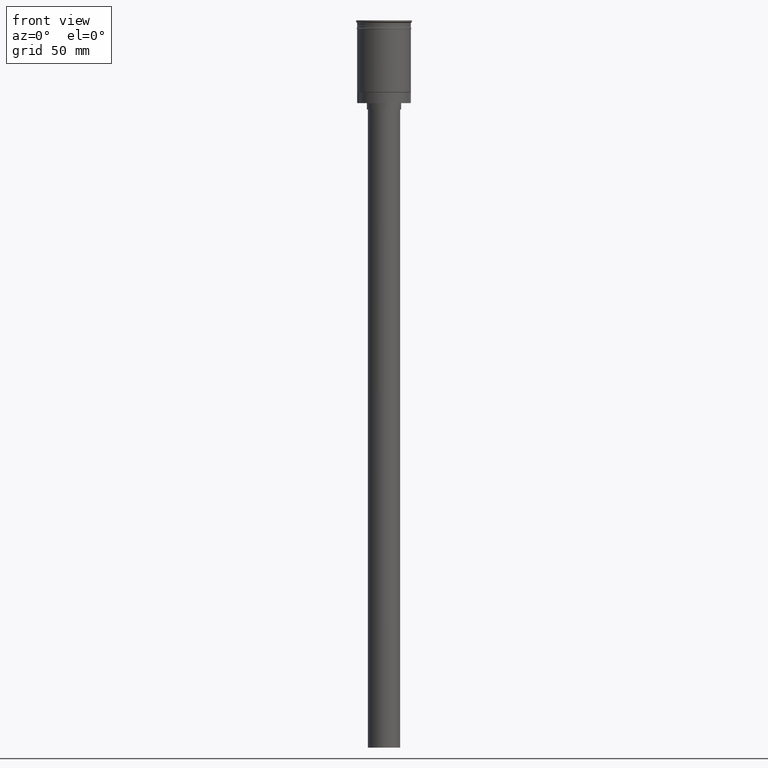
[diagram: clean part render]
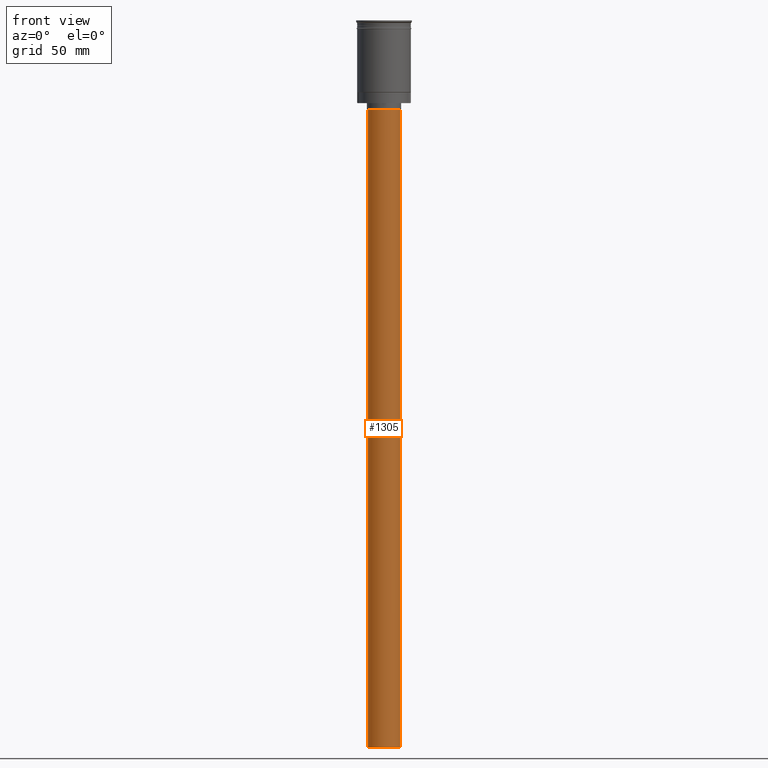
[diagram: same view with one face highlighted and labeled with its STEP entity id]
A machine part, front view. The second image highlights one B-rep face of the part: STEP entity #1305.
In plain terms, the highlighted cylindrical surface (edge-blend (fillet) strip) has radius 7.5 mm, axis along (-0, -0, 1).
Its self-contained STEP definition (entity closure, byte-faithful):
#31 = DIRECTION ( 'NONE',  ( 1.000000000000000000, 0.000000000000000000, 0.000000000000000000 ) ) ;
#34 = CIRCLE ( 'NONE', #1242, 7.500000000000000000 ) ;
#96 = DIRECTION ( 'NONE',  ( -0.000000000000000000, -0.000000000000000000, 1.000000000000000000 ) ) ;
#161 = CARTESIAN_POINT ( 'NONE',  ( -7.500000000000000000, 9.184850993605147944E-16, -41.50000000000000000 ) ) ;
#168 = VECTOR ( 'NONE', #582, 1000.000000000000000 ) ;
#171 = EDGE_CURVE ( 'NONE', #338, #834, #1398, .T. ) ;
#225 = DIRECTION ( 'NONE',  ( -1.000000000000000000, 0.000000000000000000, 0.000000000000000000 ) ) ;
#232 = CARTESIAN_POINT ( 'NONE',  ( 7.500000000000000000, 0.000000000000000000, -41.50000000000000000 ) ) ;
#246 = AXIS2_PLACEMENT_3D ( 'NONE', #327, #823, #225 ) ;
#315 = CARTESIAN_POINT ( 'NONE',  ( -7.500000000000000000, 9.184850993605147944E-16, -338.4999999999999432 ) ) ;
#327 = CARTESIAN_POINT ( 'NONE',  ( 0.000000000000000000, 0.000000000000000000, -41.50000000000000000 ) ) ;
#338 = VERTEX_POINT ( 'NONE', #232 ) ;
#408 = VERTEX_POINT ( 'NONE', #889 ) ;
#413 = FACE_OUTER_BOUND ( 'NONE', #441, .T. ) ;
#441 = EDGE_LOOP ( 'NONE', ( #1202, #887, #1454, #1021 ) ) ;
#462 = DIRECTION ( 'NONE',  ( -1.000000000000000000, 0.000000000000000000, 0.000000000000000000 ) ) ;
#520 = CARTESIAN_POINT ( 'NONE',  ( 0.000000000000000000, 0.000000000000000000, -338.4999999999999432 ) ) ;
#549 = CARTESIAN_POINT ( 'NONE',  ( 7.500000000000000000, 0.000000000000000000, -338.4999999999999432 ) ) ;
#571 = EDGE_CURVE ( 'NONE', #408, #834, #1189, .T. ) ;
#582 = DIRECTION ( 'NONE',  ( -0.000000000000000000, -0.000000000000000000, 1.000000000000000000 ) ) ;
#619 = EDGE_CURVE ( 'NONE', #990, #408, #34, .T. ) ;
#682 = VECTOR ( 'NONE', #96, 1000.000000000000000 ) ;
#732 = EDGE_CURVE ( 'NONE', #990, #338, #1197, .T. ) ;
#798 = CYLINDRICAL_SURFACE ( 'NONE', #1245, 7.500000000000000000 ) ;
#823 = DIRECTION ( 'NONE',  ( 0.000000000000000000, 0.000000000000000000, -1.000000000000000000 ) ) ;
#834 = VERTEX_POINT ( 'NONE', #161 ) ;
#887 = ORIENTED_EDGE ( 'NONE', *, *, #619, .F. ) ;
#889 = CARTESIAN_POINT ( 'NONE',  ( -7.500000000000000000, 9.184850993605147944E-16, -338.4999999999999432 ) ) ;
#990 = VERTEX_POINT ( 'NONE', #549 ) ;
#1021 = ORIENTED_EDGE ( 'NONE', *, *, #171, .T. ) ;
#1042 = DIRECTION ( 'NONE',  ( 0.000000000000000000, 0.000000000000000000, -1.000000000000000000 ) ) ;
#1189 = LINE ( 'NONE', #315, #168 ) ;
#1197 = LINE ( 'NONE', #1203, #682 ) ;
#1202 = ORIENTED_EDGE ( 'NONE', *, *, #571, .F. ) ;
#1203 = CARTESIAN_POINT ( 'NONE',  ( 7.500000000000000000, 0.000000000000000000, -338.4999999999999432 ) ) ;
#1242 = AXIS2_PLACEMENT_3D ( 'NONE', #1301, #1042, #462 ) ;
#1245 = AXIS2_PLACEMENT_3D ( 'NONE', #520, #1289, #31 ) ;
#1289 = DIRECTION ( 'NONE',  ( -0.000000000000000000, -0.000000000000000000, 1.000000000000000000 ) ) ;
#1301 = CARTESIAN_POINT ( 'NONE',  ( 0.000000000000000000, 0.000000000000000000, -338.4999999999999432 ) ) ;
#1305 = ADVANCED_FACE ( 'NONE', ( #413 ), #798, .T. ) ;
#1398 = CIRCLE ( 'NONE', #246, 7.500000000000000000 ) ;
#1454 = ORIENTED_EDGE ( 'NONE', *, *, #732, .T. ) ;